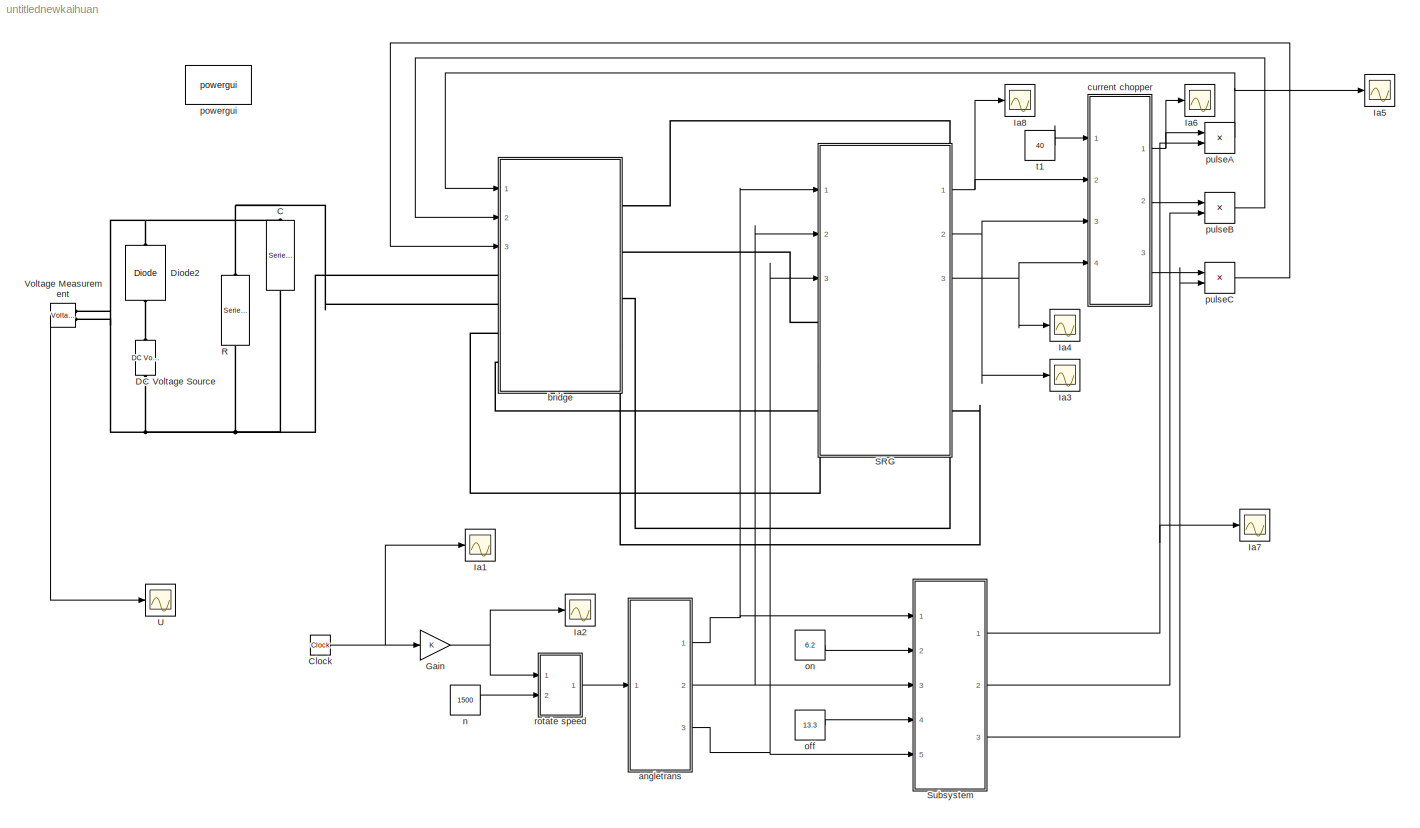
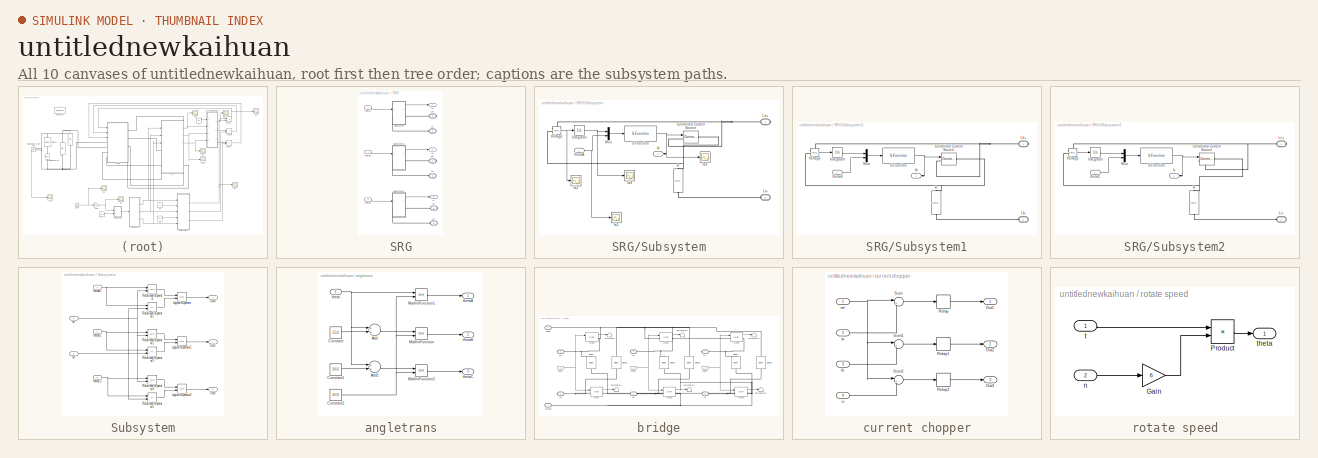
[diagram: thumbnail index - all 10 canvases of the model, root first then tree order]
MODEL untitlednewkaihuan
KIND model
BLOCK [Reference] C   REF=powerlib/Elements/Series RLC Branch
  BranchType = C
  Capacitance = 0.001
  Inductance = 1.0
  InitialCurrent = 0
  InitialVoltage = 0
  LConnTagsString = __new0
  Measurements = None
  Ports = [0, 0, 0, 0, 0, 1, 1]
  RConnTagsString = __new0
  Resistance = 1
  SID = 1
  SetiL0 = off
  Setx0 = off
  SourceBlock = powerlib/Elements/Series RLC Branch
  SourceType = Series RLC Branch
BLOCK [Clock] Clock
  Decimation = 1
  SID = 2
BLOCK [Reference] DC Voltage Source  REF=powerlib/Electrical\nSources/DC Voltage Source
  Amplitude = 80
  Measurements = None
  Ports = [0, 0, 0, 0, 0, 1, 1]
  SID = 3
  SourceBlock = powerlib/Electrical\nSources/DC Voltage Source
  SourceType = DC Voltage Source
BLOCK [Reference] Diode2  REF=powerlib/Power\nElectronics/Diode
  Cs = 250e-9
  IC = 0
  Lon = 0
  Measurements = off
  Ports = [0, 0, 0, 0, 0, 1, 1]
  Ron = 0.001
  Rs = 500
  SID = 4
  SourceBlock = powerlib/Power\nElectronics/Diode
  SourceType = Diode
  UseSnubber = off
  Vf = 0.8
BLOCK [Gain] Gain
  OutDataTypeStr = Inherit: Inherit via internal rule
  ParamDataTypeStr = Inherit: Inherit via internal rule
  SID = 5
  SaturateOnIntegerOverflow = off
BLOCK [Scope] Ia1
  DataFormat = StructureWithTime
  Floating = off
  LimitDataPoints = off
  NumInputPorts = 1
  Ports = [1]
  SID = 7
  SampleTime = 0
  SaveName = ScopeData2
  YMax = 0.05151
  YMin = 0.05133
BLOCK [Scope] Ia2
  DataFormat = StructureWithTime
  Floating = off
  NumInputPorts = 1
  Ports = [1]
  SID = 8
  SampleTime = 0
  SaveName = ScopeData3
  YMax = 0.00215
  YMin = 0.001
BLOCK [Scope] Ia3
  DataFormat = StructureWithTime
  Floating = off
  LimitDataPoints = off
  NumInputPorts = 1
  Ports = [1]
  SID = 147
  SampleTime = 0
  SaveName = ScopeData4
  YMax = 0.045
  YMin = 0
BLOCK [Scope] Ia4
  DataFormat = StructureWithTime
  Floating = off
  LimitDataPoints = off
  NumInputPorts = 1
  Ports = [1]
  SID = 148
  SampleTime = 0
  SaveName = ScopeData5
  YMax = 0.09
  YMin = 0
BLOCK [Scope] Ia5
  DataFormat = StructureWithTime
  Floating = off
  LimitDataPoints = off
  NumInputPorts = 1
  Ports = [1]
  SID = 151
  SampleTime = 0
  SaveName = ScopeData8
  YMax = 45
  YMin = 0
BLOCK [Scope] Ia6
  DataFormat = StructureWithTime
  Floating = off
  LimitDataPoints = off
  NumInputPorts = 1
  Ports = [1]
  SID = 152
  SampleTime = 0
  SaveName = ScopeData9
  TimeRange = 0.5
  YMax = 1.05
  YMin = 0.95
BLOCK [Scope] Ia7
  DataFormat = StructureWithTime
  Floating = off
  LimitDataPoints = off
  NumInputPorts = 1
  Ports = [1]
  SID = 153
  SampleTime = 0
  SaveName = ScopeData10
  YMax = 45
  YMin = 0
BLOCK [Scope] Ia8
  DataFormat = StructureWithTime
  Floating = off
  LimitDataPoints = off
  NumInputPorts = 1
  Ports = [1]
  SID = 157
  SampleTime = 0
  TimeRange = 0.5
  YMax = 7.5
  YMin = 0
BLOCK [Reference] R  REF=powerlib/Elements/Series RLC Branch
  BranchType = R
  Capacitance = 1.0
  Inductance = 1.0
  InitialCurrent = 0
  InitialVoltage = 0
  LConnTagsString = __new0
  Measurements = None
  Ports = [0, 0, 0, 0, 0, 1, 1]
  RConnTagsString = __new0
  Resistance = 100
  SID = 9
  SetiL0 = off
  Setx0 = off
  SourceBlock = powerlib/Elements/Series RLC Branch
  SourceType = Series RLC Branch
BLOCK [SubSystem] SRG
  Ports = [3, 3, 0, 0, 0, 3, 3]
  RequestExecContextInheritance = off
  SID = 10
BLOCK [Outport] SRG/Ia
  IconDisplay = Port number
  SID = 53
BLOCK [Outport] SRG/Ib
  IconDisplay = Port number
  Port = 2
  SID = 54
BLOCK [Outport] SRG/Ic
  IconDisplay = Port number
  Port = 3
  SID = 55
BLOCK [PMIOPort] SRG/La+
  Port = 2
  SID = 48
  Side = Right
  Tag = PMCPort
BLOCK [PMIOPort] SRG/La-
  Port = 1
  SID = 47
  Side = Left
  Tag = PMCPort
BLOCK [PMIOPort] SRG/Lb+
  Port = 4
  SID = 50
  Side = Right
  Tag = PMCPort
BLOCK [PMIOPort] SRG/Lb-
  Port = 3
  SID = 49
  Side = Left
  Tag = PMCPort
BLOCK [PMIOPort] SRG/Lc+
  Port = 6
  SID = 52
  Side = Right
  Tag = PMCPort
BLOCK [PMIOPort] SRG/Lc-
  Port = 5
  SID = 51
  Side = Left
  Tag = PMCPort
BLOCK [SubSystem] SRG/Subsystem
  Ports = [1, 1, 0, 0, 0, 1, 1]
  RequestExecContextInheritance = off
  SID = 14
BLOCK [Reference] SRG/Subsystem/Controlled Current Source  REF=powerlib/Electrical\nSources/Controlled Current Source
  Amplitude = 0
  Frequency = 0
  Initialize = on
  Measurements = None
  Phase = 0
  Ports = [1, 0, 0, 0, 0, 1, 1]
  SID = 16
  SourceBlock = powerlib/Electrical\nSources/Controlled Current Source
  SourceType = Controlled Current Source
  Source_Type = AC
BLOCK [Outport] SRG/Subsystem/Ia
  IconDisplay = Port number
  SID = 24
BLOCK [Scope] SRG/Subsystem/Ia1
  DataFormat = StructureWithTime
  Floating = off
  LimitDataPoints = off
  NumInputPorts = 1
  Ports = [1]
  SID = 149
  SampleTime = 0
  SaveName = ScopeData6
  YMax = 45
  YMin = 0
BLOCK [Scope] SRG/Subsystem/Ia2
  DataFormat = StructureWithTime
  Floating = off
  LimitDataPoints = off
  NumInputPorts = 1
  Ports = [1]
  SID = 150
  SampleTime = 0
  SaveName = ScopeData7
  YMax = 121.25
  YMin = 116.25
BLOCK [Scope] SRG/Subsystem/Ia3
  DataFormat = StructureWithTime
  Floating = off
  LimitDataPoints = off
  NumInputPorts = 1
  Ports = [1]
  SID = 154
  SampleTime = 0
  SaveName = ScopeData11
  TimeRange = 0.5
  YMax = 9.5
  YMin = 0
BLOCK [Scope] SRG/Subsystem/Ia4
  DataFormat = StructureWithTime
  Floating = off
  LimitDataPoints = off
  NumInputPorts = 1
  Ports = [1]
  SID = 155
  SampleTime = 0
  SaveName = ScopeData12
  YMax = 0.0175
  YMin = -0.0375
BLOCK [Integrator] SRG/Subsystem/Integrator
  LimitOutput = on
  LowerSaturationLimit = 0
  Ports = [1, 1]
  SID = 17
BLOCK [PMIOPort] SRG/Subsystem/La+
  Port = 1
  SID = 22
  Side = Right
  Tag = PMCPort
BLOCK [PMIOPort] SRG/Subsystem/La-
  Port = 2
  SID = 23
  Side = Left
  Tag = PMCPort
BLOCK [Mux] SRG/Subsystem/Mux
  DisplayOption = bar
  Inputs = 2
  Ports = [2, 1]
  SID = 18
BLOCK [Reference] SRG/Subsystem/R  REF=powerlib/Elements/Series RLC Branch
  BranchType = R
  Capacitance = 1.0
  Inductance = 1.0
  InitialCurrent = 0
  InitialVoltage = 0
  LConnTagsString = __new0
  Measurements = None
  Ports = [0, 0, 0, 0, 0, 1, 1]
  RConnTagsString = __new0
  Resistance = 0.0261014
  SID = 19
  SetiL0 = off
  Setx0 = off
  SourceBlock = powerlib/Elements/Series RLC Branch
  SourceType = Series RLC Branch
BLOCK [S-Function] SRG/Subsystem/S-Function
  FunctionName = my_sfunction
  Ports = [1, 1]
  SID = 20
BLOCK [Reference] SRG/Subsystem/Voltage  REF=powerlib/Measurements/Voltage Measurement
  OutputType = Complex
  PSBequivalent = 0
  PhasorSimulation = off
  Ports = [0, 1, 0, 0, 0, 2]
  SID = 21
  SourceBlock = powerlib/Measurements/Voltage Measurement
  SourceType = Voltage Measurement
BLOCK [Inport] SRG/Subsystem/thetaA
  IconDisplay = Port number
  SID = 15
BLOCK [SubSystem] SRG/Subsystem1
  Ports = [1, 1, 0, 0, 0, 1, 1]
  RequestExecContextInheritance = off
  SID = 25
BLOCK [Reference] SRG/Subsystem1/Controlled Current Source  REF=powerlib/Electrical\nSources/Controlled Current Source
  Amplitude = 0
  Frequency = 0
  Initialize = on
  Measurements = None
  Phase = 0
  Ports = [1, 0, 0, 0, 0, 1, 1]
  SID = 27
  SourceBlock = powerlib/Electrical\nSources/Controlled Current Source
  SourceType = Controlled Current Source
  Source_Type = AC
BLOCK [Outport] SRG/Subsystem1/Ib
  IconDisplay = Port number
  SID = 35
BLOCK [Integrator] SRG/Subsystem1/Integrator
  LimitOutput = on
  LowerSaturationLimit = 0
  Ports = [1, 1]
  SID = 28
BLOCK [PMIOPort] SRG/Subsystem1/Lb+
  Port = 1
  SID = 33
  Side = Right
  Tag = PMCPort
BLOCK [PMIOPort] SRG/Subsystem1/Lb-
  Port = 2
  SID = 34
  Side = Left
  Tag = PMCPort
BLOCK [Mux] SRG/Subsystem1/Mux
  DisplayOption = bar
  Inputs = 2
  Ports = [2, 1]
  SID = 29
BLOCK [Reference] SRG/Subsystem1/R  REF=powerlib/Elements/Series RLC Branch
  BranchType = R
  Capacitance = 1.0
  Inductance = 1.0
  InitialCurrent = 0
  InitialVoltage = 0
  LConnTagsString = __new0
  Measurements = None
  Ports = [0, 0, 0, 0, 0, 1, 1]
  RConnTagsString = __new0
  Resistance = 0.0261014
  SID = 30
  SetiL0 = off
  Setx0 = off
  SourceBlock = powerlib/Elements/Series RLC Branch
  SourceType = Series RLC Branch
BLOCK [S-Function] SRG/Subsystem1/S-Function
  FunctionName = my_sfunction
  Ports = [1, 1]
  SID = 31
BLOCK [Reference] SRG/Subsystem1/Voltage  REF=powerlib/Measurements/Voltage Measurement
  OutputType = Complex
  PSBequivalent = 0
  PhasorSimulation = off
  Ports = [0, 1, 0, 0, 0, 2]
  SID = 32
  SourceBlock = powerlib/Measurements/Voltage Measurement
  SourceType = Voltage Measurement
BLOCK [Inport] SRG/Subsystem1/thetaB
  IconDisplay = Port number
  SID = 26
BLOCK [SubSystem] SRG/Subsystem2
  Ports = [1, 1, 0, 0, 0, 1, 1]
  RequestExecContextInheritance = off
  SID = 36
BLOCK [Reference] SRG/Subsystem2/Controlled Current Source  REF=powerlib/Electrical\nSources/Controlled Current Source
  Amplitude = 0
  Frequency = 0
  Initialize = on
  Measurements = None
  Phase = 0
  Ports = [1, 0, 0, 0, 0, 1, 1]
  SID = 38
  SourceBlock = powerlib/Electrical\nSources/Controlled Current Source
  SourceType = Controlled Current Source
  Source_Type = AC
BLOCK [Outport] SRG/Subsystem2/Ic
  IconDisplay = Port number
  SID = 46
BLOCK [Integrator] SRG/Subsystem2/Integrator
  LimitOutput = on
  LowerSaturationLimit = 0
  Ports = [1, 1]
  SID = 39
BLOCK [PMIOPort] SRG/Subsystem2/Lc+
  Port = 1
  SID = 44
  Side = Right
  Tag = PMCPort
BLOCK [PMIOPort] SRG/Subsystem2/Lc-
  Port = 2
  SID = 45
  Side = Left
  Tag = PMCPort
BLOCK [Mux] SRG/Subsystem2/Mux
  DisplayOption = bar
  Inputs = 2
  Ports = [2, 1]
  SID = 40
BLOCK [Reference] SRG/Subsystem2/R  REF=powerlib/Elements/Series RLC Branch
  BranchType = R
  Capacitance = 1.0
  Inductance = 1.0
  InitialCurrent = 0
  InitialVoltage = 0
  LConnTagsString = __new0
  Measurements = None
  Ports = [0, 0, 0, 0, 0, 1, 1]
  RConnTagsString = __new0
  Resistance = 0.0261014
  SID = 41
  SetiL0 = off
  Setx0 = off
  SourceBlock = powerlib/Elements/Series RLC Branch
  SourceType = Series RLC Branch
BLOCK [S-Function] SRG/Subsystem2/S-Function
  FunctionName = my_sfunction
  Ports = [1, 1]
  SID = 42
BLOCK [Reference] SRG/Subsystem2/Voltage  REF=powerlib/Measurements/Voltage Measurement
  OutputType = Complex
  PSBequivalent = 0
  PhasorSimulation = off
  Ports = [0, 1, 0, 0, 0, 2]
  SID = 43
  SourceBlock = powerlib/Measurements/Voltage Measurement
  SourceType = Voltage Measurement
BLOCK [Inport] SRG/Subsystem2/thetaC
  IconDisplay = Port number
  SID = 37
BLOCK [Inport] SRG/thetaA
  IconDisplay = Port number
  SID = 11
BLOCK [Inport] SRG/thetaB
  IconDisplay = Port number
  Port = 2
  SID = 12
BLOCK [Inport] SRG/thetaC
  IconDisplay = Port number
  Port = 3
  SID = 13
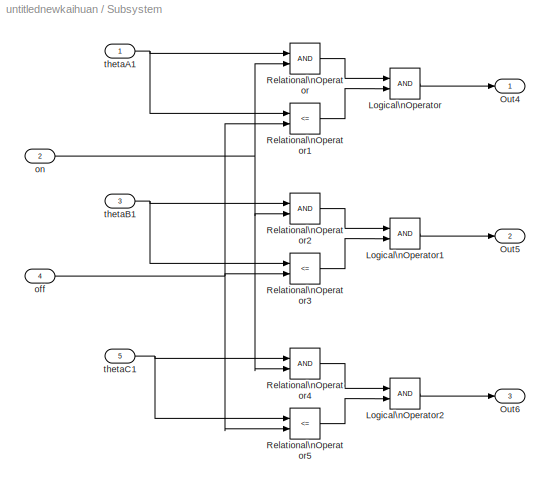
BLOCK [SubSystem] Subsystem
  Ports = [5, 3]
  RequestExecContextInheritance = off
  SID = 56
BLOCK [Logic] Subsystem/Logical\nOperator
  AllPortsSameDT = off
  OutDataTypeStr = boolean
  Ports = [2, 1]
  SID = 62
BLOCK [Logic] Subsystem/Logical\nOperator1
  AllPortsSameDT = off
  OutDataTypeStr = boolean
  Ports = [2, 1]
  SID = 63
BLOCK [Logic] Subsystem/Logical\nOperator2
  AllPortsSameDT = off
  OutDataTypeStr = boolean
  Ports = [2, 1]
  SID = 64
BLOCK [Outport] Subsystem/Out4
  IconDisplay = Port number
  SID = 71
BLOCK [Outport] Subsystem/Out5
  IconDisplay = Port number
  Port = 2
  SID = 72
BLOCK [Outport] Subsystem/Out6
  IconDisplay = Port number
  Port = 3
  SID = 73
BLOCK [RelationalOperator] Subsystem/Relational\nOperator
  InputSameDT = off
  OutDataTypeStr = boolean
  Ports = [2, 1]
  SID = 65
BLOCK [RelationalOperator] Subsystem/Relational\nOperator1
  InputSameDT = off
  Operator = <=
  OutDataTypeStr = boolean
  Ports = [2, 1]
  SID = 66
BLOCK [RelationalOperator] Subsystem/Relational\nOperator2
  InputSameDT = off
  OutDataTypeStr = boolean
  Ports = [2, 1]
  SID = 67
BLOCK [RelationalOperator] Subsystem/Relational\nOperator3
  InputSameDT = off
  Operator = <=
  OutDataTypeStr = boolean
  Ports = [2, 1]
  SID = 68
BLOCK [RelationalOperator] Subsystem/Relational\nOperator4
  InputSameDT = off
  OutDataTypeStr = boolean
  Ports = [2, 1]
  SID = 69
BLOCK [RelationalOperator] Subsystem/Relational\nOperator5
  InputSameDT = off
  Operator = <=
  OutDataTypeStr = boolean
  Ports = [2, 1]
  SID = 70
BLOCK [Inport] Subsystem/off
  IconDisplay = Port number
  Port = 4
  SID = 60
BLOCK [Inport] Subsystem/on
  IconDisplay = Port number
  Port = 2
  SID = 58
BLOCK [Inport] Subsystem/thetaA1
  IconDisplay = Port number
  SID = 57
BLOCK [Inport] Subsystem/thetaB1
  IconDisplay = Port number
  Port = 3
  SID = 59
BLOCK [Inport] Subsystem/thetaC1
  IconDisplay = Port number
  Port = 5
  SID = 61
BLOCK [Scope] U
  DataFormat = StructureWithTime
  Floating = off
  LimitDataPoints = off
  NumInputPorts = 1
  Ports = [1]
  SID = 74
  SampleTime = 0
  SaveName = ScopeData1
  TimeRange = 0.1
  YMax = 131.5
  YMin = 121.5
  ZoomMode = xonly
BLOCK [Reference] Voltage Measurement  REF=powerlib/Measurements/Voltage Measurement
  OutputType = Complex
  PSBequivalent = 0
  PhasorSimulation = off
  Ports = [0, 1, 0, 0, 0, 2]
  SID = 75
  SourceBlock = powerlib/Measurements/Voltage Measurement
  SourceType = Voltage Measurement
BLOCK [SubSystem] angletrans
  Ports = [1, 3]
  RequestExecContextInheritance = off
  SID = 76
BLOCK [Sum] angletrans/Add
  InputSameDT = off
  OutDataTypeStr = Inherit: Inherit via internal rule
  Ports = [2, 1]
  SID = 78
  SaturateOnIntegerOverflow = off
BLOCK [Sum] angletrans/Add1
  InputSameDT = off
  OutDataTypeStr = Inherit: Inherit via internal rule
  Ports = [2, 1]
  SID = 79
  SaturateOnIntegerOverflow = off
BLOCK [Constant] angletrans/Constant
  SID = 80
  Value = 15/2
BLOCK [Constant] angletrans/Constant1
  SID = 81
  Value = 30/2
BLOCK [Constant] angletrans/Constant2
  SID = 82
  Value = 45/2
BLOCK [Math] angletrans/Math\nFunction
  Operator = rem
  Ports = [2, 1]
  SID = 83
BLOCK [Math] angletrans/Math\nFunction1
  Operator = rem
  Ports = [2, 1]
  SID = 84
BLOCK [Math] angletrans/Math\nFunction2
  Operator = rem
  Ports = [2, 1]
  SID = 85
BLOCK [Inport] angletrans/theta
  IconDisplay = Port number
  SID = 77
BLOCK [Outport] angletrans/thetaA
  IconDisplay = Port number
  SID = 86
BLOCK [Outport] angletrans/thetaB
  IconDisplay = Port number
  Port = 2
  SID = 87
BLOCK [Outport] angletrans/thetaC
  IconDisplay = Port number
  Port = 3
  SID = 88
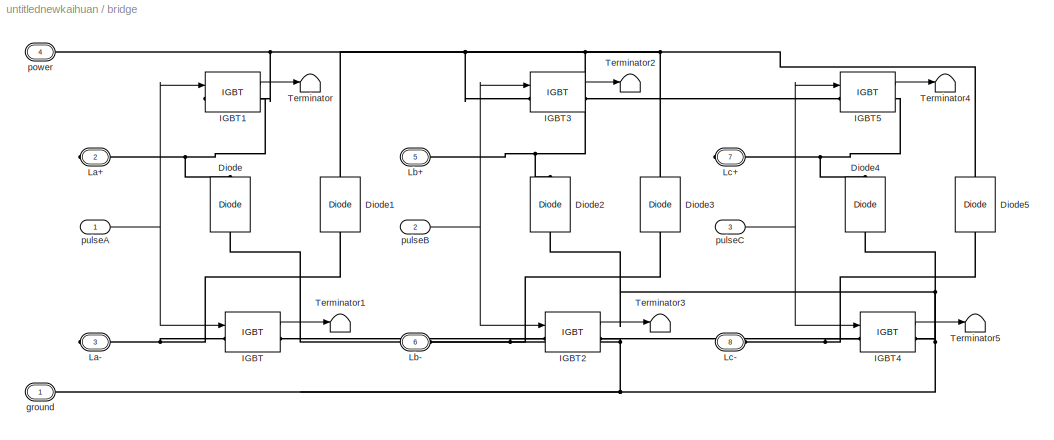
BLOCK [SubSystem] bridge
  Ports = [3, 0, 0, 0, 0, 4, 4]
  RequestExecContextInheritance = off
  SID = 89
BLOCK [Reference] bridge/Diode  REF=powerlib/Power\nElectronics/Diode
  Cs = 250e-9
  IC = 0
  Lon = 0
  Measurements = off
  Ports = [0, 0, 0, 0, 0, 1, 1]
  Ron = 0.001
  Rs = 500
  SID = 93
  SourceBlock = powerlib/Power\nElectronics/Diode
  SourceType = Diode
  UseSnubber = off
  Vf = 0.8
BLOCK [Reference] bridge/Diode1  REF=powerlib/Power\nElectronics/Diode
  Cs = 250e-9
  IC = 0
  Lon = 0
  Measurements = off
  Ports = [0, 0, 0, 0, 0, 1, 1]
  Ron = 0.001
  Rs = 500
  SID = 94
  SourceBlock = powerlib/Power\nElectronics/Diode
  SourceType = Diode
  UseSnubber = off
  Vf = 0.8
BLOCK [Reference] bridge/Diode2  REF=powerlib/Power\nElectronics/Diode
  Cs = 250e-9
  IC = 0
  Lon = 0
  Measurements = off
  Ports = [0, 0, 0, 0, 0, 1, 1]
  Ron = 0.001
  Rs = 500
  SID = 95
  SourceBlock = powerlib/Power\nElectronics/Diode
  SourceType = Diode
  UseSnubber = off
  Vf = 0.8
BLOCK [Reference] bridge/Diode3  REF=powerlib/Power\nElectronics/Diode
  Cs = 250e-9
  IC = 0
  Lon = 0
  Measurements = off
  Ports = [0, 0, 0, 0, 0, 1, 1]
  Ron = 0.001
  Rs = 500
  SID = 96
  SourceBlock = powerlib/Power\nElectronics/Diode
  SourceType = Diode
  UseSnubber = off
  Vf = 0.8
BLOCK [Reference] bridge/Diode4  REF=powerlib/Power\nElectronics/Diode
  Cs = 250e-9
  IC = 0
  Lon = 0
  Measurements = off
  Ports = [0, 0, 0, 0, 0, 1, 1]
  Ron = 0.001
  Rs = 500
  SID = 97
  SourceBlock = powerlib/Power\nElectronics/Diode
  SourceType = Diode
  UseSnubber = off
  Vf = 0.8
BLOCK [Reference] bridge/Diode5  REF=powerlib/Power\nElectronics/Diode
  Cs = 250e-9
  IC = 0
  Lon = 0
  Measurements = off
  Ports = [0, 0, 0, 0, 0, 1, 1]
  Ron = 0.001
  Rs = 500
  SID = 98
  SourceBlock = powerlib/Power\nElectronics/Diode
  SourceType = Diode
  UseSnubber = off
  Vf = 0.8
BLOCK [Reference] bridge/IGBT  REF=powerlib/Power\nElectronics/IGBT
  Cs = inf
  IC = 0
  Lon = 0
  Measurements = on
  Ports = [1, 1, 0, 0, 0, 1, 1]
  Ron = 0.001
  Rs = 1e5
  SID = 99
  SourceBlock = powerlib/Power\nElectronics/IGBT
  SourceType = IGBT
  Tf = 1e-6
  Tt = 2e-6
  Vf = 1
BLOCK [Reference] bridge/IGBT1  REF=powerlib/Power\nElectronics/IGBT
  Cs = inf
  IC = 0
  Lon = 0
  Measurements = on
  Ports = [1, 1, 0, 0, 0, 1, 1]
  Ron = 0.001
  Rs = 1e5
  SID = 100
  SourceBlock = powerlib/Power\nElectronics/IGBT
  SourceType = IGBT
  Tf = 1e-6
  Tt = 2e-6
  Vf = 1
BLOCK [Reference] bridge/IGBT2  REF=powerlib/Power\nElectronics/IGBT
  Cs = inf
  IC = 0
  Lon = 0
  Measurements = on
  Ports = [1, 1, 0, 0, 0, 1, 1]
  Ron = 0.001
  Rs = 1e5
  SID = 101
  SourceBlock = powerlib/Power\nElectronics/IGBT
  SourceType = IGBT
  Tf = 1e-6
  Tt = 2e-6
  Vf = 1
BLOCK [Reference] bridge/IGBT3  REF=powerlib/Power\nElectronics/IGBT
  Cs = inf
  IC = 0
  Lon = 0
  Measurements = on
  Ports = [1, 1, 0, 0, 0, 1, 1]
  Ron = 0.001
  Rs = 1e5
  SID = 102
  SourceBlock = powerlib/Power\nElectronics/IGBT
  SourceType = IGBT
  Tf = 1e-6
  Tt = 2e-6
  Vf = 1
BLOCK [Reference] bridge/IGBT4  REF=powerlib/Power\nElectronics/IGBT
  Cs = inf
  IC = 0
  Lon = 0
  Measurements = on
  Ports = [1, 1, 0, 0, 0, 1, 1]
  Ron = 0.001
  Rs = 1e5
  SID = 103
  SourceBlock = powerlib/Power\nElectronics/IGBT
  SourceType = IGBT
  Tf = 1e-6
  Tt = 2e-6
  Vf = 1
BLOCK [Reference] bridge/IGBT5  REF=powerlib/Power\nElectronics/IGBT
  Cs = inf
  IC = 0
  Lon = 0
  Measurements = on
  Ports = [1, 1, 0, 0, 0, 1, 1]
  Ron = 0.001
  Rs = 1e5
  SID = 104
  SourceBlock = powerlib/Power\nElectronics/IGBT
  SourceType = IGBT
  Tf = 1e-6
  Tt = 2e-6
  Vf = 1
BLOCK [PMIOPort] bridge/La+
  Port = 2
  SID = 112
  Side = Right
  Tag = PMCPort
BLOCK [PMIOPort] bridge/La-
  Port = 3
  SID = 113
  Side = Right
  Tag = PMCPort
BLOCK [PMIOPort] bridge/Lb+
  Port = 5
  SID = 115
  Side = Right
  Tag = PMCPort
BLOCK [PMIOPort] bridge/Lb-
  Port = 6
  SID = 116
  Side = Left
  Tag = PMCPort
BLOCK [PMIOPort] bridge/Lc+
  Port = 7
  SID = 117
  Side = Right
  Tag = PMCPort
BLOCK [PMIOPort] bridge/Lc-
  Port = 8
  SID = 118
  Side = Left
  Tag = PMCPort
BLOCK [Terminator] bridge/Terminator
  SID = 105
BLOCK [Terminator] bridge/Terminator1
  SID = 106
BLOCK [Terminator] bridge/Terminator2
  SID = 107
BLOCK [Terminator] bridge/Terminator3
  SID = 108
BLOCK [Terminator] bridge/Terminator4
  SID = 109
BLOCK [Terminator] bridge/Terminator5
  SID = 110
BLOCK [PMIOPort] bridge/ground
  Port = 1
  SID = 111
  Side = Left
  Tag = PMCPort
BLOCK [PMIOPort] bridge/power
  Port = 4
  SID = 114
  Side = Left
  Tag = PMCPort
BLOCK [Inport] bridge/pulseA
  IconDisplay = Port number
  SID = 90
BLOCK [Inport] bridge/pulseB
  IconDisplay = Port number
  Port = 2
  SID = 91
BLOCK [Inport] bridge/pulseC
  IconDisplay = Port number
  Port = 3
  SID = 92
BLOCK [SubSystem] current chopper
  Ports = [4, 3]
  RequestExecContextInheritance = off
  SID = 119
BLOCK [Outport] current chopper/Out1
  IconDisplay = Port number
  SID = 130
BLOCK [Outport] current chopper/Out2
  IconDisplay = Port number
  Port = 2
  SID = 131
BLOCK [Outport] current chopper/Out3
  IconDisplay = Port number
  Port = 3
  SID = 132
BLOCK [Relay] current chopper/Relay
  OffSwitchValue = -3
  OnSwitchValue = 3
  SID = 124
BLOCK [Relay] current chopper/Relay1
  OffSwitchValue = -3
  OnSwitchValue = 3
  SID = 125
BLOCK [Relay] current chopper/Relay2
  OffSwitchValue = -3
  OnSwitchValue = 3
  SID = 126
BLOCK [Sum] current chopper/Sum
  IconShape = round
  InputSameDT = off
  Inputs = |+-
  OutDataTypeStr = Inherit: Inherit via internal rule
  Ports = [2, 1]
  SID = 127
  SaturateOnIntegerOverflow = off
BLOCK [Sum] current chopper/Sum1
  IconShape = round
  InputSameDT = off
  Inputs = |+-
  OutDataTypeStr = Inherit: Inherit via internal rule
  Ports = [2, 1]
  SID = 128
  SaturateOnIntegerOverflow = off
BLOCK [Sum] current chopper/Sum2
  IconShape = round
  InputSameDT = off
  Inputs = |+-
  OutDataTypeStr = Inherit: Inherit via internal rule
  Ports = [2, 1]
  SID = 129
  SaturateOnIntegerOverflow = off
BLOCK [Inport] current chopper/ia
  IconDisplay = Port number
  Port = 2
  SID = 121
BLOCK [Inport] current chopper/ib
  IconDisplay = Port number
  Port = 3
  SID = 122
BLOCK [Inport] current chopper/ic
  IconDisplay = Port number
  Port = 4
  SID = 123
BLOCK [Inport] current chopper/ref
  IconDisplay = Port number
  SID = 120
BLOCK [Constant] n
  SID = 133
  Value = 1500
BLOCK [Constant] off
  SID = 134
  Value = 13.3
BLOCK [Constant] on
  SID = 135
  Value = 6.2
BLOCK [Reference] powergui  REF=powerlib/powergui
  DisableRonSwitches = off
  DisableSnubberDevices = off
  DisableVfSwitches = off
  DisplayEquations = off
  DisplayStyle = 1
  EnableUseOfTLC = off
  ErrMax = 1e-4
  Frange = [0:2:500]
  FreqAxis = off
  FunctionMessages = off
  HookPort = off
  Interpol = off
  Iterations = 50
  MaxFrequency = 1000
  Pbase = 100e6
  Ports = []
  Priority = 1
  ResistiveCurrentMeasurement = off
  RestoreLinks = warning
  RmsSteady = 1
  SID = 136
  SPID = off
  SampleTime = 50e-6
  ShowGrid = off
  SolverType = Tustin
  SourceBlock = powerlib/powergui
  SourceType = PSB option menu block
  StartTime = 0.0
  SwTol = 0
  Ts = 0
  UnitsV = kV
  UnitsW = MW
  UserData = DataTag0
  UserDataPersistent = on
  Xlog = on
  Ylog = off
  ZoomFFT = on
  buscounter = 0
  cycles = 1
  display = off
  echomessages = off
  frequency = 60
  frequencyindice = 0
  frequencyindicesteady = 1
  fundamental = 60
  methode = off
  save = off
  structure = 0
  variable = ZData
  x0status = blocks
BLOCK [Product] pulseA
  InputSameDT = off
  OutDataTypeStr = Inherit: Inherit via internal rule
  Ports = [2, 1]
  SID = 137
  SaturateOnIntegerOverflow = off
BLOCK [Product] pulseB
  InputSameDT = off
  OutDataTypeStr = Inherit: Inherit via internal rule
  Ports = [2, 1]
  SID = 138
  SaturateOnIntegerOverflow = off
BLOCK [Product] pulseC
  InputSameDT = off
  OutDataTypeStr = Inherit: Inherit via internal rule
  Ports = [2, 1]
  SID = 139
  SaturateOnIntegerOverflow = off
BLOCK [SubSystem] rotate speed
  Ports = [2, 1]
  RequestExecContextInheritance = off
  SID = 140
BLOCK [Gain] rotate speed/Gain
  Gain = 6
  OutDataTypeStr = Inherit: Inherit via internal rule
  ParamDataTypeStr = Inherit: Inherit via internal rule
  SID = 143
  SaturateOnIntegerOverflow = off
BLOCK [Product] rotate speed/Product
  InputSameDT = off
  OutDataTypeStr = Inherit: Inherit via internal rule
  Ports = [2, 1]
  SID = 144
  SaturateOnIntegerOverflow = off
BLOCK [Inport] rotate speed/n
  IconDisplay = Port number
  Port = 2
  SID = 142
BLOCK [Inport] rotate speed/t
  IconDisplay = Port number
  SID = 141
BLOCK [Outport] rotate speed/theta
  IconDisplay = Port number
  SID = 145
BLOCK [Constant] t1
  SID = 146
  Value = 40
NET Clock:1 -> Gain:1, Ia1:1
NET Gain:1 -> Ia2:1, rotate speed:1
NET SRG/Subsystem/Integrator:1 -> SRG/Subsystem/Ia4:1, SRG/Subsystem/Mux:1
LINE SRG/Subsystem/Mux:1 -> SRG/Subsystem/S-Function:1
NET SRG/Subsystem/S-Function:1 -> SRG/Subsystem/Controlled Current Source:1, SRG/Subsystem/Ia3:1, SRG/Subsystem/Ia:1
NET SRG/Subsystem/Voltage:1 -> SRG/Subsystem/Ia2:1, SRG/Subsystem/Integrator:1
NET SRG/Subsystem/thetaA:1 -> SRG/Subsystem/Ia1:1, SRG/Subsystem/Mux:2
LINE SRG/Subsystem1/Integrator:1 -> SRG/Subsystem1/Mux:1
LINE SRG/Subsystem1/Mux:1 -> SRG/Subsystem1/S-Function:1
NET SRG/Subsystem1/S-Function:1 -> SRG/Subsystem1/Controlled Current Source:1, SRG/Subsystem1/Ib:1
LINE SRG/Subsystem1/Voltage:1 -> SRG/Subsystem1/Integrator:1
LINE SRG/Subsystem1/thetaB:1 -> SRG/Subsystem1/Mux:2
LINE SRG/Subsystem1:1 -> SRG/Ib:1
LINE SRG/Subsystem2/Integrator:1 -> SRG/Subsystem2/Mux:1
LINE SRG/Subsystem2/Mux:1 -> SRG/Subsystem2/S-Function:1
NET SRG/Subsystem2/S-Function:1 -> SRG/Subsystem2/Controlled Current Source:1, SRG/Subsystem2/Ic:1
LINE SRG/Subsystem2/Voltage:1 -> SRG/Subsystem2/Integrator:1
LINE SRG/Subsystem2/thetaC:1 -> SRG/Subsystem2/Mux:2
LINE SRG/Subsystem2:1 -> SRG/Ic:1
LINE SRG/Subsystem:1 -> SRG/Ia:1
LINE SRG/thetaA:1 -> SRG/Subsystem:1
LINE SRG/thetaB:1 -> SRG/Subsystem1:1
LINE SRG/thetaC:1 -> SRG/Subsystem2:1
NET SRG:1 -> Ia8:1, current chopper:2
NET SRG:2 -> Ia3:1, current chopper:3
NET SRG:3 -> Ia4:1, current chopper:4
LINE Subsystem/Logical\nOperator1:1 -> Subsystem/Out5:1
LINE Subsystem/Logical\nOperator2:1 -> Subsystem/Out6:1
LINE Subsystem/Logical\nOperator:1 -> Subsystem/Out4:1
LINE Subsystem/Relational\nOperator1:1 -> Subsystem/Logical\nOperator:2
LINE Subsystem/Relational\nOperator2:1 -> Subsystem/Logical\nOperator1:1
LINE Subsystem/Relational\nOperator3:1 -> Subsystem/Logical\nOperator1:2
LINE Subsystem/Relational\nOperator4:1 -> Subsystem/Logical\nOperator2:1
LINE Subsystem/Relational\nOperator5:1 -> Subsystem/Logical\nOperator2:2
LINE Subsystem/Relational\nOperator:1 -> Subsystem/Logical\nOperator:1
NET Subsystem/off:1 -> Subsystem/Relational\nOperator1:2, Subsystem/Relational\nOperator3:2, Subsystem/Relational\nOperator5:2
NET Subsystem/on:1 -> Subsystem/Relational\nOperator2:2, Subsystem/Relational\nOperator4:2, Subsystem/Relational\nOperator:2
NET Subsystem/thetaA1:1 -> Subsystem/Relational\nOperator1:1, Subsystem/Relational\nOperator:1
NET Subsystem/thetaB1:1 -> Subsystem/Relational\nOperator2:1, Subsystem/Relational\nOperator3:1
NET Subsystem/thetaC1:1 -> Subsystem/Relational\nOperator4:1, Subsystem/Relational\nOperator5:1
NET Subsystem:1 -> Ia7:1, pulseA:2
LINE Subsystem:2 -> pulseB:2
LINE Subsystem:3 -> pulseC:2
LINE Voltage Measurement:1 -> U:1
LINE angletrans/Add1:1 -> angletrans/Math\nFunction2:1
LINE angletrans/Add:1 -> angletrans/Math\nFunction:1
LINE angletrans/Constant1:1 -> angletrans/Add1:2
NET angletrans/Constant2:1 -> angletrans/Math\nFunction1:2, angletrans/Math\nFunction2:2, angletrans/Math\nFunction:2
LINE angletrans/Constant:1 -> angletrans/Add:2
LINE angletrans/Math\nFunction1:1 -> angletrans/thetaA:1
LINE angletrans/Math\nFunction2:1 -> angletrans/thetaC:1
LINE angletrans/Math\nFunction:1 -> angletrans/thetaB:1
NET angletrans/theta:1 -> angletrans/Add1:1, angletrans/Add:1, angletrans/Math\nFunction1:1
NET angletrans:1 -> SRG:1, Subsystem:1
NET angletrans:2 -> SRG:2, Subsystem:3
NET angletrans:3 -> SRG:3, Subsystem:5
LINE bridge/IGBT1:1 -> bridge/Terminator:1
LINE bridge/IGBT2:1 -> bridge/Terminator3:1
LINE bridge/IGBT3:1 -> bridge/Terminator2:1
LINE bridge/IGBT4:1 -> bridge/Terminator5:1
LINE bridge/IGBT5:1 -> bridge/Terminator4:1
LINE bridge/IGBT:1 -> bridge/Terminator1:1
NET bridge/pulseA:1 -> bridge/IGBT1:1, bridge/IGBT:1
NET bridge/pulseB:1 -> bridge/IGBT2:1, bridge/IGBT3:1
NET bridge/pulseC:1 -> bridge/IGBT4:1, bridge/IGBT5:1
LINE current chopper/Relay1:1 -> current chopper/Out2:1
LINE current chopper/Relay2:1 -> current chopper/Out3:1
LINE current chopper/Relay:1 -> current chopper/Out1:1
LINE current chopper/Sum1:1 -> current chopper/Relay1:1
LINE current chopper/Sum2:1 -> current chopper/Relay2:1
LINE current chopper/Sum:1 -> current chopper/Relay:1
LINE current chopper/ia:1 -> current chopper/Sum:2
LINE current chopper/ib:1 -> current chopper/Sum1:2
LINE current chopper/ic:1 -> current chopper/Sum2:2
NET current chopper/ref:1 -> current chopper/Sum1:1, current chopper/Sum2:1, current chopper/Sum:1
NET current chopper:1 -> Ia6:1, pulseA:1
LINE current chopper:2 -> pulseB:1
LINE current chopper:3 -> pulseC:1
LINE n:1 -> rotate speed:2
LINE off:1 -> Subsystem:4
LINE on:1 -> Subsystem:2
NET pulseA:1 -> Ia5:1, bridge:1
LINE pulseB:1 -> bridge:2
LINE pulseC:1 -> bridge:3
LINE rotate speed/Gain:1 -> rotate speed/Product:2
LINE rotate speed/Product:1 -> rotate speed/theta:1
LINE rotate speed/n:1 -> rotate speed/Gain:1
LINE rotate speed/t:1 -> rotate speed/Product:1
LINE rotate speed:1 -> angletrans:1
LINE t1:1 -> current chopper:1
PNET net1: C :LConn1 -- DC Voltage Source:LConn1 -- R:RConn1 -- Voltage Measurement:LConn2 -- bridge:LConn1
PNET net2: C :RConn1 -- Diode2:RConn1 -- R:LConn1 -- Voltage Measurement:LConn1 -- bridge:LConn2
PLINE DC Voltage Source:RConn1 -- Diode2:LConn1
PLINE SRG/La+:RConn1 -- SRG/Subsystem:RConn1
PLINE SRG/La-:RConn1 -- SRG/Subsystem:LConn1
PLINE SRG/Lb+:RConn1 -- SRG/Subsystem1:RConn1
PLINE SRG/Lb-:RConn1 -- SRG/Subsystem1:LConn1
PLINE SRG/Lc+:RConn1 -- SRG/Subsystem2:RConn1
PLINE SRG/Lc-:RConn1 -- SRG/Subsystem2:LConn1
PNET net3: SRG/Subsystem/Controlled Current Source:LConn1 -- SRG/Subsystem/La+:RConn1 -- SRG/Subsystem/Voltage:LConn1
PNET net4: SRG/Subsystem/Controlled Current Source:RConn1 -- SRG/Subsystem/R:LConn1 -- SRG/Subsystem/Voltage:LConn2
PLINE SRG/Subsystem/La-:RConn1 -- SRG/Subsystem/R:RConn1
PNET net5: SRG/Subsystem1/Controlled Current Source:LConn1 -- SRG/Subsystem1/Lb+:RConn1 -- SRG/Subsystem1/Voltage:LConn1
PNET net6: SRG/Subsystem1/Controlled Current Source:RConn1 -- SRG/Subsystem1/R:LConn1 -- SRG/Subsystem1/Voltage:LConn2
PLINE SRG/Subsystem1/Lb-:RConn1 -- SRG/Subsystem1/R:RConn1
PNET net7: SRG/Subsystem2/Controlled Current Source:LConn1 -- SRG/Subsystem2/Lc+:RConn1 -- SRG/Subsystem2/Voltage:LConn1
PNET net8: SRG/Subsystem2/Controlled Current Source:RConn1 -- SRG/Subsystem2/R:LConn1 -- SRG/Subsystem2/Voltage:LConn2
PLINE SRG/Subsystem2/Lc-:RConn1 -- SRG/Subsystem2/R:RConn1
PLINE SRG:LConn1 -- bridge:RConn2
PLINE SRG:LConn2 -- bridge:LConn3
PLINE SRG:LConn3 -- bridge:LConn4
PLINE SRG:RConn1 -- bridge:RConn1
PLINE SRG:RConn2 -- bridge:RConn3
PLINE SRG:RConn3 -- bridge:RConn4
PNET net9: bridge/Diode1:LConn1 -- bridge/IGBT:LConn1 -- bridge/La-:RConn1
PNET net10: bridge/Diode1:RConn1 -- bridge/Diode3:RConn1 -- bridge/Diode5:RConn1 -- bridge/IGBT1:LConn1 -- bridge/IGBT3:LConn1 -- bridge/IGBT5:LConn1 -- bridge/power:RConn1
PNET net11: bridge/Diode2:LConn1 -- bridge/Diode4:LConn1 -- bridge/Diode:LConn1 -- bridge/IGBT2:RConn1 -- bridge/IGBT4:RConn1 -- bridge/IGBT:RConn1 -- bridge/ground:RConn1
PNET net12: bridge/Diode2:RConn1 -- bridge/IGBT3:RConn1 -- bridge/Lb+:RConn1
PNET net13: bridge/Diode3:LConn1 -- bridge/IGBT2:LConn1 -- bridge/Lb-:RConn1
PNET net14: bridge/Diode4:RConn1 -- bridge/IGBT5:RConn1 -- bridge/Lc+:RConn1
PNET net15: bridge/Diode5:LConn1 -- bridge/IGBT4:LConn1 -- bridge/Lc-:RConn1
PNET net16: bridge/Diode:RConn1 -- bridge/IGBT1:RConn1 -- bridge/La+:RConn1
note: NET lines group one-source signal fan-out (src -> all destinations, sorted); 1:1 wires keep LINE; PNET lines group multi-terminal physical nets as a canonical sorted terminal list (undirected conserving connections); 2-terminal nets keep the pairwise PLINE form
